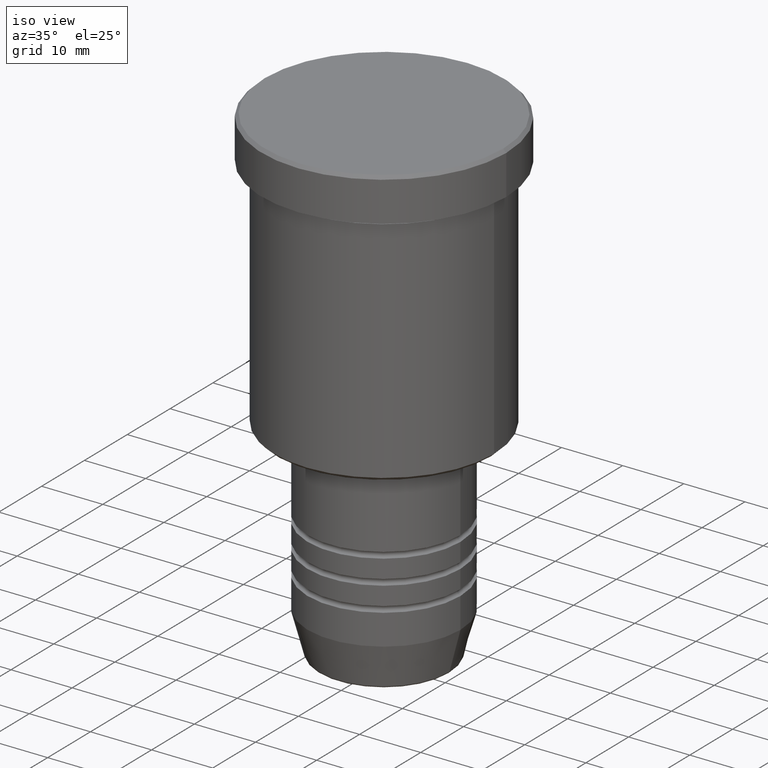
[diagram: clean part render]
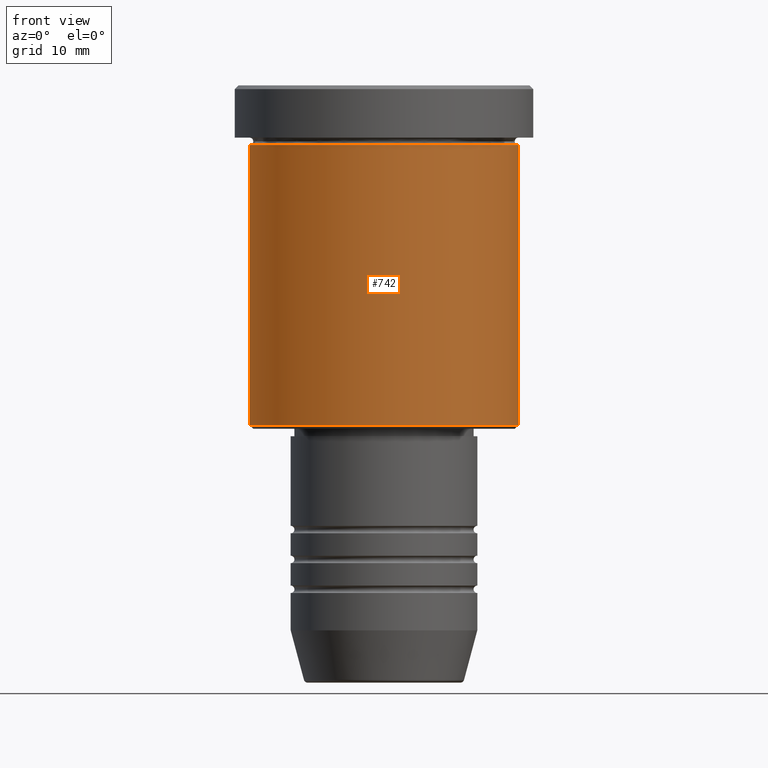
[diagram: tour spotlight — one face highlighted and labeled with its STEP entity id]
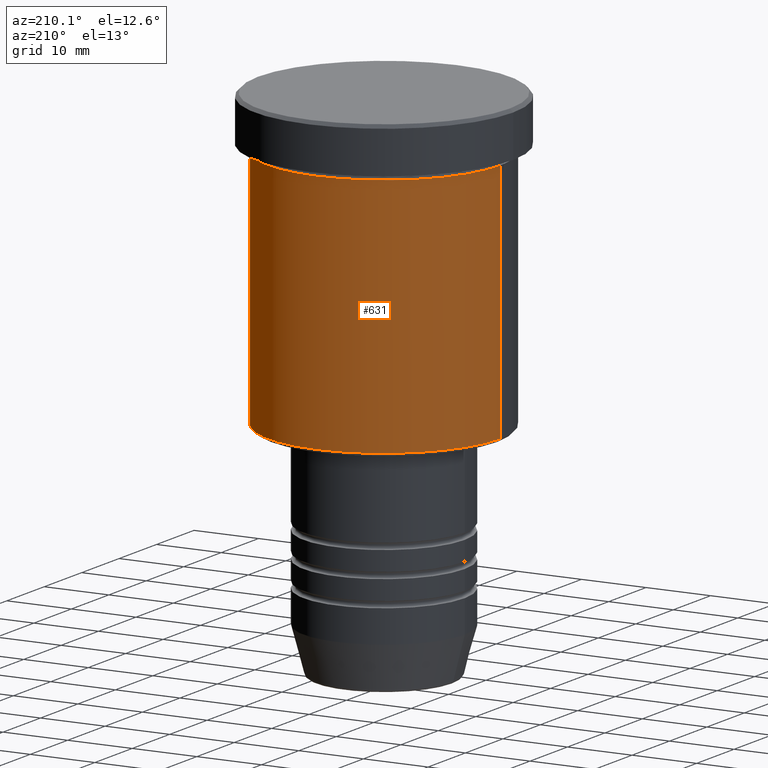
[diagram: tour spotlight — one face highlighted and labeled with its STEP entity id]
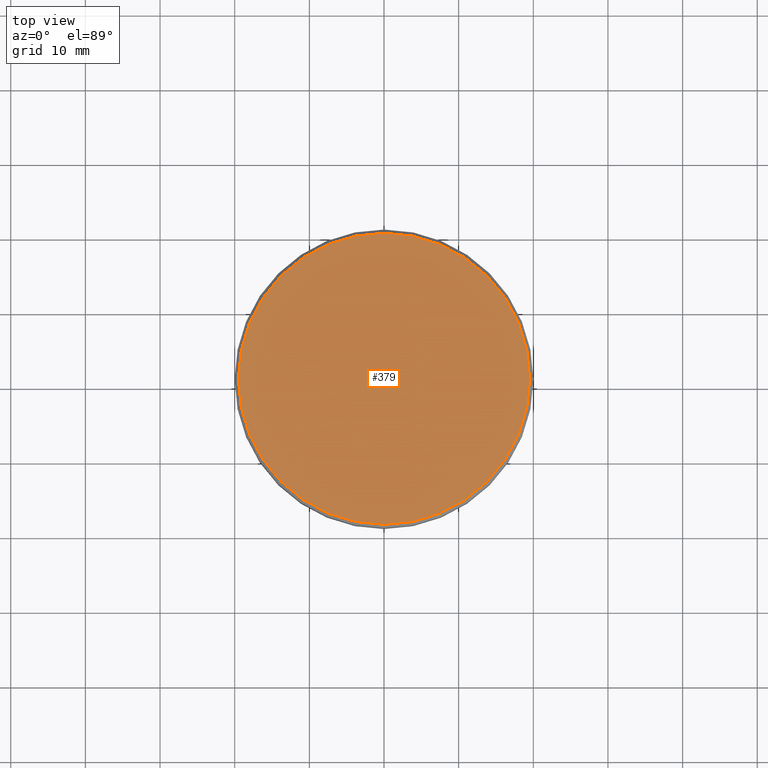
[diagram: tour spotlight — one face highlighted and labeled with its STEP entity id]
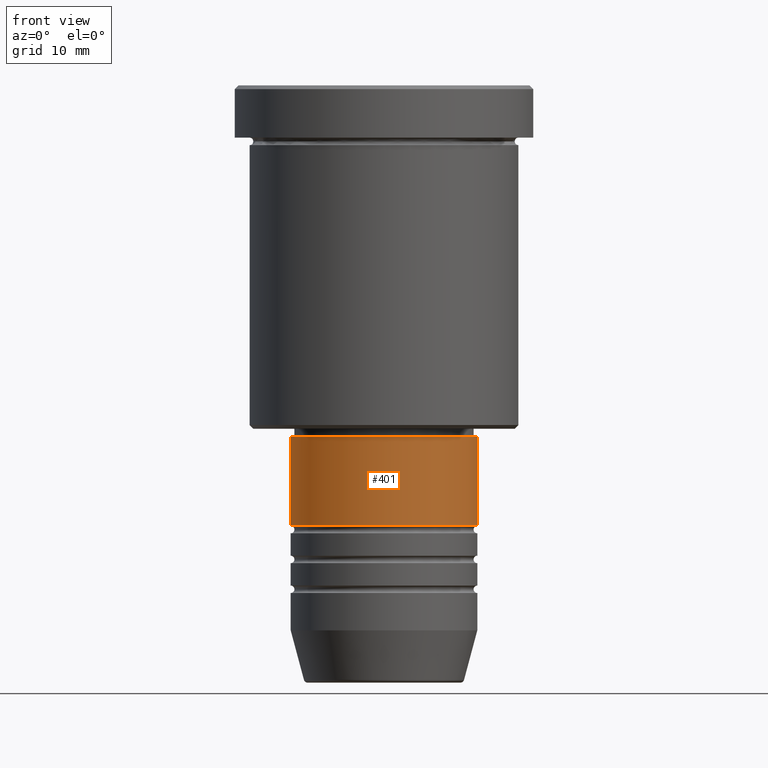
[diagram: tour spotlight — one face highlighted and labeled with its STEP entity id]
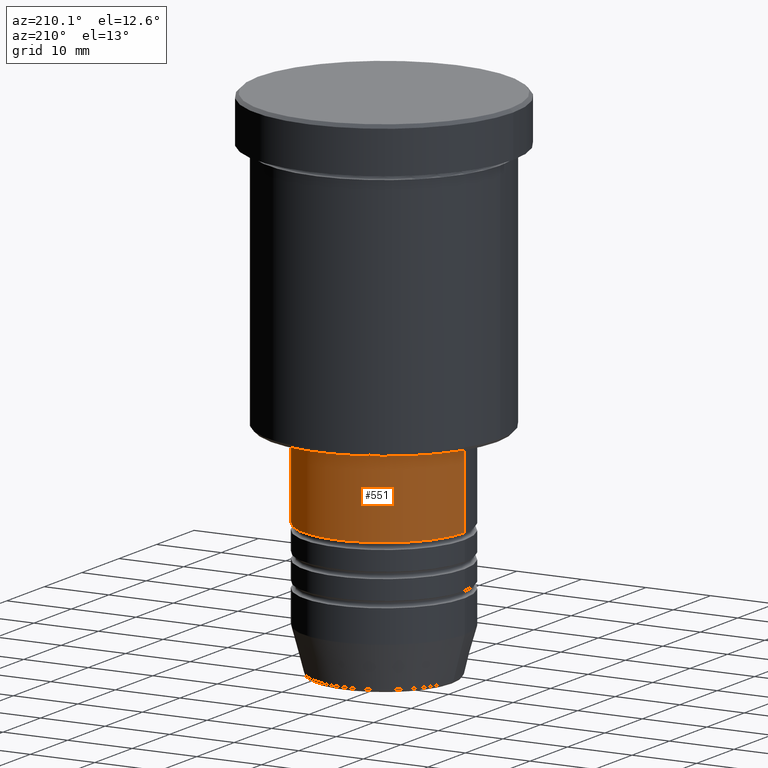
[diagram: tour spotlight — one face highlighted and labeled with its STEP entity id]
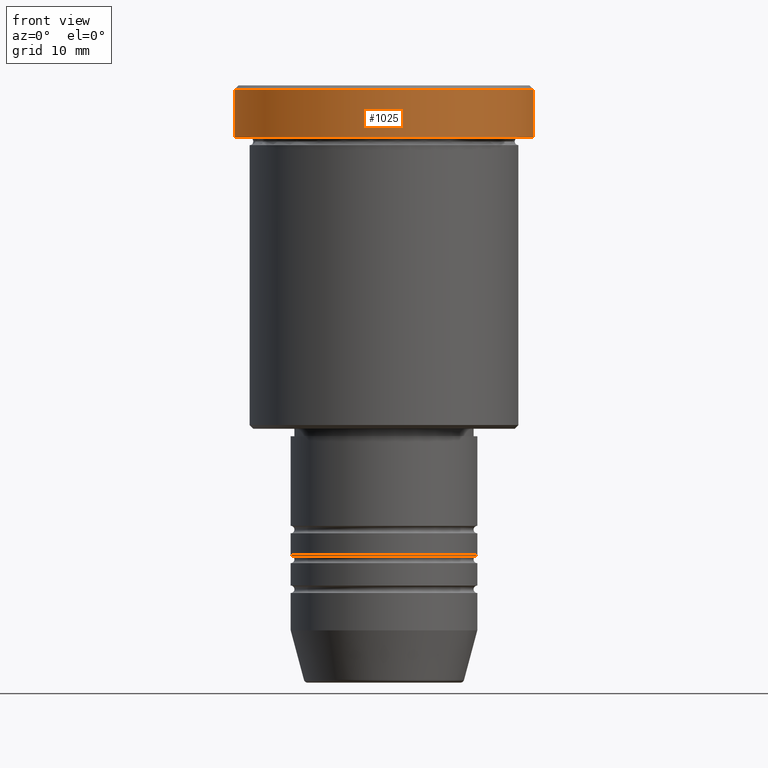
[diagram: tour spotlight — one face highlighted and labeled with its STEP entity id]
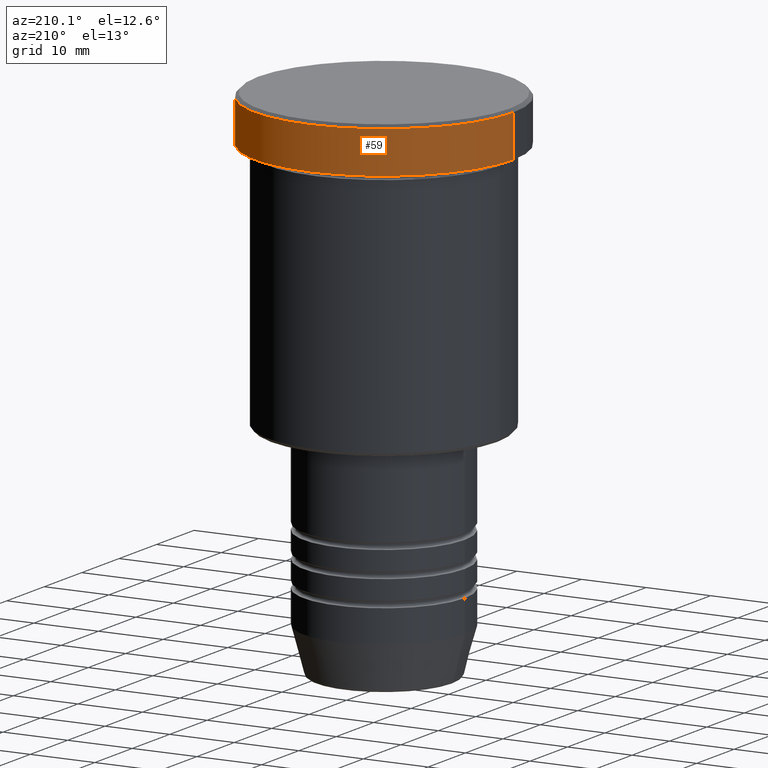
[diagram: tour spotlight — one face highlighted and labeled with its STEP entity id]
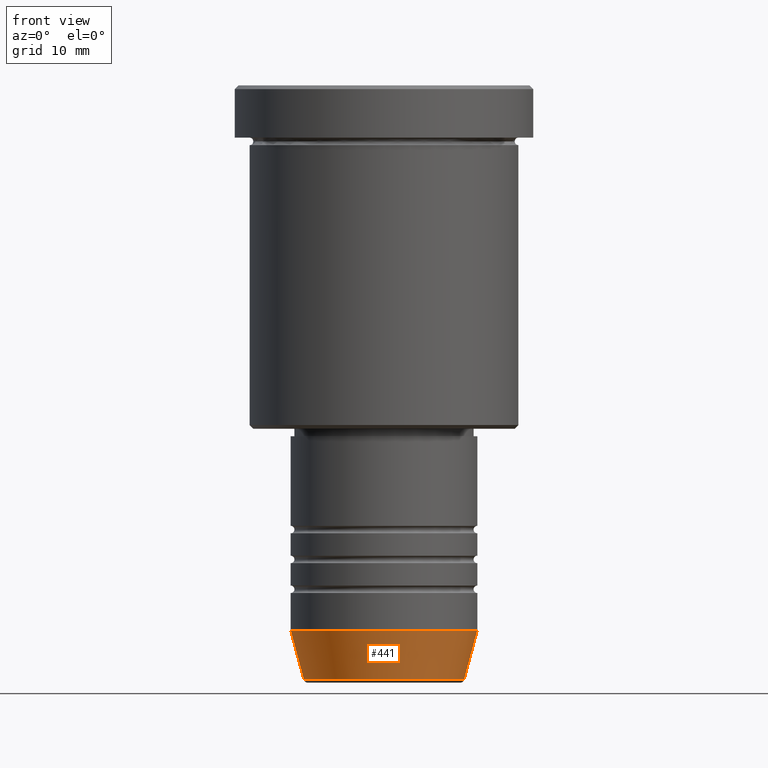
[diagram: tour spotlight — one face highlighted and labeled with its STEP entity id]
A machine part: a face-by-face anatomy tour. The part has 43 B-rep faces; the first image is the clean iso view, then the 8 largest visible faces are spotlighted one at a time (largest first), each with its STEP entity span.

Face 1 — front view, entity #742. In plain terms, the highlighted cylindrical surface (partial cylindrical patch) has radius 18 mm, axis along (-0, -0, 1).
Definition (entity closure, byte-faithful):
#19 = DIRECTION ( 'NONE',  ( -0.000000000000000000, -0.000000000000000000, 1.000000000000000000 ) ) ;
#40 = VERTEX_POINT ( 'NONE', #566 ) ;
#43 = VECTOR ( 'NONE', #19, 1000.000000000000000 ) ;
#87 = CARTESIAN_POINT ( 'NONE',  ( 18.00000000000000000, 0.000000000000000000, 0.000000000000000000 ) ) ;
#125 = ORIENTED_EDGE ( 'NONE', *, *, #521, .T. ) ;
#201 = AXIS2_PLACEMENT_3D ( 'NONE', #649, #1140, #1142 ) ;
#241 = EDGE_CURVE ( 'NONE', #801, #40, #531, .T. ) ;
#324 = DIRECTION ( 'NONE',  ( -0.000000000000000000, -0.000000000000000000, 1.000000000000000000 ) ) ;
#331 = AXIS2_PLACEMENT_3D ( 'NONE', #1138, #324, #969 ) ;
#377 = CARTESIAN_POINT ( 'NONE',  ( 0.000000000000000000, 0.000000000000000000, -7.999999999999996447 ) ) ;
#383 = DIRECTION ( 'NONE',  ( -0.000000000000000000, -0.000000000000000000, 1.000000000000000000 ) ) ;
#395 = CARTESIAN_POINT ( 'NONE',  ( -18.00000000000000000, 2.204364238465235428E-15, 0.000000000000000000 ) ) ;
#403 = ORIENTED_EDGE ( 'NONE', *, *, #1121, .F. ) ;
#415 = CYLINDRICAL_SURFACE ( 'NONE', #331, 18.00000000000000000 ) ;
#521 = EDGE_CURVE ( 'NONE', #40, #860, #1181, .T. ) ;
#524 = CARTESIAN_POINT ( 'NONE',  ( -18.00000000000000000, 2.204364238465235428E-15, -45.50000000000000000 ) ) ;
#531 = CIRCLE ( 'NONE', #201, 18.00000000000000000 ) ;
#552 = EDGE_LOOP ( 'NONE', ( #403, #1173, #125, #1176 ) ) ;
#566 = CARTESIAN_POINT ( 'NONE',  ( 18.00000000000000000, 0.000000000000000000, -45.50000000000000000 ) ) ;
#604 = CARTESIAN_POINT ( 'NONE',  ( 18.00000000000000000, 0.000000000000000000, -7.999999999999996447 ) ) ;
#649 = CARTESIAN_POINT ( 'NONE',  ( 0.000000000000000000, 0.000000000000000000, -45.50000000000000000 ) ) ;
#689 = AXIS2_PLACEMENT_3D ( 'NONE', #377, #810, #928 ) ;
#742 = ADVANCED_FACE ( 'NONE', ( #865 ), #415, .T. ) ;
#796 = VERTEX_POINT ( 'NONE', #877 ) ;
#801 = VERTEX_POINT ( 'NONE', #524 ) ;
#810 = DIRECTION ( 'NONE',  ( -0.000000000000000000, -0.000000000000000000, 1.000000000000000000 ) ) ;
#860 = VERTEX_POINT ( 'NONE', #604 ) ;
#865 = FACE_OUTER_BOUND ( 'NONE', #552, .T. ) ;
#877 = CARTESIAN_POINT ( 'NONE',  ( -18.00000000000000000, 2.204364238465235428E-15, -7.999999999999996447 ) ) ;
#907 = CIRCLE ( 'NONE', #689, 18.00000000000000000 ) ;
#928 = DIRECTION ( 'NONE',  ( 1.000000000000000000, 0.000000000000000000, 0.000000000000000000 ) ) ;
#969 = DIRECTION ( 'NONE',  ( 1.000000000000000000, 0.000000000000000000, 0.000000000000000000 ) ) ;
#995 = EDGE_CURVE ( 'NONE', #796, #860, #907, .T. ) ;
#1043 = LINE ( 'NONE', #395, #43 ) ;
#1121 = EDGE_CURVE ( 'NONE', #801, #796, #1043, .T. ) ;
#1138 = CARTESIAN_POINT ( 'NONE',  ( 0.000000000000000000, 0.000000000000000000, 0.000000000000000000 ) ) ;
#1140 = DIRECTION ( 'NONE',  ( -0.000000000000000000, -0.000000000000000000, 1.000000000000000000 ) ) ;
#1142 = DIRECTION ( 'NONE',  ( -1.000000000000000000, 0.000000000000000000, 0.000000000000000000 ) ) ;
#1173 = ORIENTED_EDGE ( 'NONE', *, *, #241, .T. ) ;
#1176 = ORIENTED_EDGE ( 'NONE', *, *, #995, .F. ) ;
#1181 = LINE ( 'NONE', #87, #1182 ) ;
#1182 = VECTOR ( 'NONE', #383, 1000.000000000000000 ) ;

Face 2 — auxiliary view, entity #631. In plain terms, the highlighted cylindrical surface (partial cylindrical patch) has radius 18 mm, axis along (-0, -0, 1).
Definition (entity closure, byte-faithful):
#19 = DIRECTION ( 'NONE',  ( -0.000000000000000000, -0.000000000000000000, 1.000000000000000000 ) ) ;
#40 = VERTEX_POINT ( 'NONE', #566 ) ;
#43 = VECTOR ( 'NONE', #19, 1000.000000000000000 ) ;
#87 = CARTESIAN_POINT ( 'NONE',  ( 18.00000000000000000, 0.000000000000000000, 0.000000000000000000 ) ) ;
#157 = DIRECTION ( 'NONE',  ( -1.000000000000000000, 0.000000000000000000, 0.000000000000000000 ) ) ;
#162 = ORIENTED_EDGE ( 'NONE', *, *, #776, .T. ) ;
#332 = DIRECTION ( 'NONE',  ( -0.000000000000000000, -0.000000000000000000, 1.000000000000000000 ) ) ;
#354 = CIRCLE ( 'NONE', #809, 18.00000000000000000 ) ;
#362 = DIRECTION ( 'NONE',  ( -0.000000000000000000, -0.000000000000000000, 1.000000000000000000 ) ) ;
#373 = CIRCLE ( 'NONE', #984, 18.00000000000000000 ) ;
#383 = DIRECTION ( 'NONE',  ( -0.000000000000000000, -0.000000000000000000, 1.000000000000000000 ) ) ;
#395 = CARTESIAN_POINT ( 'NONE',  ( -18.00000000000000000, 2.204364238465235428E-15, 0.000000000000000000 ) ) ;
#443 = DIRECTION ( 'NONE',  ( 1.000000000000000000, 0.000000000000000000, 0.000000000000000000 ) ) ;
#478 = DIRECTION ( 'NONE',  ( 1.000000000000000000, 0.000000000000000000, 0.000000000000000000 ) ) ;
#521 = EDGE_CURVE ( 'NONE', #40, #860, #1181, .T. ) ;
#524 = CARTESIAN_POINT ( 'NONE',  ( -18.00000000000000000, 2.204364238465235428E-15, -45.50000000000000000 ) ) ;
#566 = CARTESIAN_POINT ( 'NONE',  ( 18.00000000000000000, 0.000000000000000000, -45.50000000000000000 ) ) ;
#604 = CARTESIAN_POINT ( 'NONE',  ( 18.00000000000000000, 0.000000000000000000, -7.999999999999996447 ) ) ;
#631 = ADVANCED_FACE ( 'NONE', ( #757 ), #937, .T. ) ;
#633 = CARTESIAN_POINT ( 'NONE',  ( 0.000000000000000000, 0.000000000000000000, -7.999999999999996447 ) ) ;
#648 = ORIENTED_EDGE ( 'NONE', *, *, #1121, .T. ) ;
#757 = FACE_OUTER_BOUND ( 'NONE', #946, .T. ) ;
#762 = DIRECTION ( 'NONE',  ( -0.000000000000000000, -0.000000000000000000, 1.000000000000000000 ) ) ;
#776 = EDGE_CURVE ( 'NONE', #40, #801, #373, .T. ) ;
#796 = VERTEX_POINT ( 'NONE', #877 ) ;
#801 = VERTEX_POINT ( 'NONE', #524 ) ;
#809 = AXIS2_PLACEMENT_3D ( 'NONE', #633, #362, #443 ) ;
#836 = ORIENTED_EDGE ( 'NONE', *, *, #521, .F. ) ;
#860 = VERTEX_POINT ( 'NONE', #604 ) ;
#877 = CARTESIAN_POINT ( 'NONE',  ( -18.00000000000000000, 2.204364238465235428E-15, -7.999999999999996447 ) ) ;
#914 = EDGE_CURVE ( 'NONE', #860, #796, #354, .T. ) ;
#937 = CYLINDRICAL_SURFACE ( 'NONE', #1131, 18.00000000000000000 ) ;
#946 = EDGE_LOOP ( 'NONE', ( #162, #648, #1137, #836 ) ) ;
#984 = AXIS2_PLACEMENT_3D ( 'NONE', #1074, #332, #157 ) ;
#1043 = LINE ( 'NONE', #395, #43 ) ;
#1074 = CARTESIAN_POINT ( 'NONE',  ( 0.000000000000000000, 0.000000000000000000, -45.50000000000000000 ) ) ;
#1121 = EDGE_CURVE ( 'NONE', #801, #796, #1043, .T. ) ;
#1122 = CARTESIAN_POINT ( 'NONE',  ( 0.000000000000000000, 0.000000000000000000, 0.000000000000000000 ) ) ;
#1131 = AXIS2_PLACEMENT_3D ( 'NONE', #1122, #762, #478 ) ;
#1137 = ORIENTED_EDGE ( 'NONE', *, *, #914, .F. ) ;
#1181 = LINE ( 'NONE', #87, #1182 ) ;
#1182 = VECTOR ( 'NONE', #383, 1000.000000000000000 ) ;

Face 3 — top view, entity #379. In plain terms, the highlighted planar face has unit normal (0, -0, 1).
Definition (entity closure, byte-faithful):
#99 = EDGE_LOOP ( 'NONE', ( #625, #889 ) ) ;
#187 = CARTESIAN_POINT ( 'NONE',  ( 19.50000000000000355, 2.418677428316022726E-15, 0.000000000000000000 ) ) ;
#207 = CARTESIAN_POINT ( 'NONE',  ( 0.000000000000000000, 0.000000000000000000, 0.000000000000000000 ) ) ;
#259 = CARTESIAN_POINT ( 'NONE',  ( 0.000000000000000000, 0.000000000000000000, 0.000000000000000000 ) ) ;
#317 = CIRCLE ( 'NONE', #909, 19.50000000000000355 ) ;
#343 = PLANE ( 'NONE',  #966 ) ;
#353 = CIRCLE ( 'NONE', #927, 19.50000000000000355 ) ;
#378 = DIRECTION ( 'NONE',  ( -0.000000000000000000, -0.000000000000000000, 1.000000000000000000 ) ) ;
#379 = ADVANCED_FACE ( 'NONE', ( #624 ), #343, .T. ) ;
#475 = VERTEX_POINT ( 'NONE', #187 ) ;
#501 = EDGE_CURVE ( 'NONE', #475, #778, #353, .T. ) ;
#519 = CARTESIAN_POINT ( 'NONE',  ( -19.50000000000000355, 0.000000000000000000, 0.000000000000000000 ) ) ;
#624 = FACE_OUTER_BOUND ( 'NONE', #99, .T. ) ;
#625 = ORIENTED_EDGE ( 'NONE', *, *, #1096, .T. ) ;
#778 = VERTEX_POINT ( 'NONE', #519 ) ;
#863 = CARTESIAN_POINT ( 'NONE',  ( 0.000000000000000000, 0.000000000000000000, 0.000000000000000000 ) ) ;
#883 = DIRECTION ( 'NONE',  ( 0.000000000000000000, -0.000000000000000000, 1.000000000000000000 ) ) ;
#889 = ORIENTED_EDGE ( 'NONE', *, *, #501, .T. ) ;
#909 = AXIS2_PLACEMENT_3D ( 'NONE', #863, #1120, #1130 ) ;
#927 = AXIS2_PLACEMENT_3D ( 'NONE', #207, #378, #994 ) ;
#966 = AXIS2_PLACEMENT_3D ( 'NONE', #259, #883, #976 ) ;
#976 = DIRECTION ( 'NONE',  ( 1.000000000000000000, 0.000000000000000000, 0.000000000000000000 ) ) ;
#994 = DIRECTION ( 'NONE',  ( 1.000000000000000000, 0.000000000000000000, 0.000000000000000000 ) ) ;
#1096 = EDGE_CURVE ( 'NONE', #778, #475, #317, .T. ) ;
#1120 = DIRECTION ( 'NONE',  ( -0.000000000000000000, -0.000000000000000000, 1.000000000000000000 ) ) ;
#1130 = DIRECTION ( 'NONE',  ( 1.000000000000000000, 0.000000000000000000, 0.000000000000000000 ) ) ;

Face 4 — front view, entity #401. In plain terms, the highlighted cylindrical surface (partial cylindrical patch) has radius 12.5 mm, axis along (-0, -0, 1).
Definition (entity closure, byte-faithful):
#25 = ORIENTED_EDGE ( 'NONE', *, *, #1170, .T. ) ;
#35 = VERTEX_POINT ( 'NONE', #141 ) ;
#48 = EDGE_LOOP ( 'NONE', ( #516, #25, #295, #359 ) ) ;
#79 = DIRECTION ( 'NONE',  ( 1.000000000000000000, 0.000000000000000000, 0.000000000000000000 ) ) ;
#101 = VECTOR ( 'NONE', #447, 1000.000000000000000 ) ;
#141 = CARTESIAN_POINT ( 'NONE',  ( -12.50000000000000000, 1.530808498934191521E-15, -47.00000000000000000 ) ) ;
#205 = VERTEX_POINT ( 'NONE', #589 ) ;
#252 = DIRECTION ( 'NONE',  ( 1.000000000000000000, 0.000000000000000000, 0.000000000000000000 ) ) ;
#256 = DIRECTION ( 'NONE',  ( -0.000000000000000000, -0.000000000000000000, 1.000000000000000000 ) ) ;
#295 = ORIENTED_EDGE ( 'NONE', *, *, #363, .T. ) ;
#348 = LINE ( 'NONE', #705, #635 ) ;
#358 = EDGE_CURVE ( 'NONE', #35, #205, #468, .T. ) ;
#359 = ORIENTED_EDGE ( 'NONE', *, *, #358, .F. ) ;
#363 = EDGE_CURVE ( 'NONE', #732, #205, #620, .T. ) ;
#400 = DIRECTION ( 'NONE',  ( -0.000000000000000000, -0.000000000000000000, 1.000000000000000000 ) ) ;
#401 = ADVANCED_FACE ( 'NONE', ( #1069 ), #794, .T. ) ;
#447 = DIRECTION ( 'NONE',  ( -0.000000000000000000, -0.000000000000000000, 1.000000000000000000 ) ) ;
#468 = CIRCLE ( 'NONE', #546, 12.50000000000000000 ) ;
#483 = VERTEX_POINT ( 'NONE', #651 ) ;
#494 = CARTESIAN_POINT ( 'NONE',  ( 0.000000000000000000, 0.000000000000000000, -59.00000000000000711 ) ) ;
#516 = ORIENTED_EDGE ( 'NONE', *, *, #896, .F. ) ;
#525 = CARTESIAN_POINT ( 'NONE',  ( 0.000000000000000000, 0.000000000000000000, 0.000000000000000000 ) ) ;
#538 = DIRECTION ( 'NONE',  ( -0.000000000000000000, -0.000000000000000000, 1.000000000000000000 ) ) ;
#546 = AXIS2_PLACEMENT_3D ( 'NONE', #688, #538, #79 ) ;
#589 = CARTESIAN_POINT ( 'NONE',  ( 12.50000000000000000, 0.000000000000000000, -47.00000000000000000 ) ) ;
#620 = LINE ( 'NONE', #902, #101 ) ;
#635 = VECTOR ( 'NONE', #256, 1000.000000000000000 ) ;
#651 = CARTESIAN_POINT ( 'NONE',  ( -12.50000000000000000, 1.530808498934191521E-15, -59.00000000000000711 ) ) ;
#688 = CARTESIAN_POINT ( 'NONE',  ( 0.000000000000000000, 0.000000000000000000, -47.00000000000000000 ) ) ;
#705 = CARTESIAN_POINT ( 'NONE',  ( -12.50000000000000000, 1.530808498934191521E-15, 0.000000000000000000 ) ) ;
#732 = VERTEX_POINT ( 'NONE', #1045 ) ;
#760 = DIRECTION ( 'NONE',  ( 1.000000000000000000, 0.000000000000000000, 0.000000000000000000 ) ) ;
#794 = CYLINDRICAL_SURFACE ( 'NONE', #930, 12.50000000000000000 ) ;
#896 = EDGE_CURVE ( 'NONE', #483, #35, #348, .T. ) ;
#902 = CARTESIAN_POINT ( 'NONE',  ( 12.50000000000000000, 0.000000000000000000, 0.000000000000000000 ) ) ;
#930 = AXIS2_PLACEMENT_3D ( 'NONE', #525, #986, #252 ) ;
#945 = AXIS2_PLACEMENT_3D ( 'NONE', #494, #400, #760 ) ;
#986 = DIRECTION ( 'NONE',  ( -0.000000000000000000, -0.000000000000000000, 1.000000000000000000 ) ) ;
#1045 = CARTESIAN_POINT ( 'NONE',  ( 12.50000000000000000, 0.000000000000000000, -59.00000000000000711 ) ) ;
#1069 = FACE_OUTER_BOUND ( 'NONE', #48, .T. ) ;
#1113 = CIRCLE ( 'NONE', #945, 12.50000000000000000 ) ;
#1170 = EDGE_CURVE ( 'NONE', #483, #732, #1113, .T. ) ;

Face 5 — auxiliary view, entity #551. In plain terms, the highlighted cylindrical surface (partial cylindrical patch) has radius 12.5 mm, axis along (-0, -0, 1).
Definition (entity closure, byte-faithful):
#13 = ORIENTED_EDGE ( 'NONE', *, *, #188, .T. ) ;
#35 = VERTEX_POINT ( 'NONE', #141 ) ;
#89 = EDGE_CURVE ( 'NONE', #205, #35, #492, .T. ) ;
#101 = VECTOR ( 'NONE', #447, 1000.000000000000000 ) ;
#109 = DIRECTION ( 'NONE',  ( 1.000000000000000000, 0.000000000000000000, 0.000000000000000000 ) ) ;
#130 = CARTESIAN_POINT ( 'NONE',  ( 0.000000000000000000, 0.000000000000000000, -47.00000000000000000 ) ) ;
#141 = CARTESIAN_POINT ( 'NONE',  ( -12.50000000000000000, 1.530808498934191521E-15, -47.00000000000000000 ) ) ;
#154 = DIRECTION ( 'NONE',  ( 1.000000000000000000, 0.000000000000000000, 0.000000000000000000 ) ) ;
#184 = AXIS2_PLACEMENT_3D ( 'NONE', #599, #771, #154 ) ;
#188 = EDGE_CURVE ( 'NONE', #732, #483, #357, .T. ) ;
#205 = VERTEX_POINT ( 'NONE', #589 ) ;
#256 = DIRECTION ( 'NONE',  ( -0.000000000000000000, -0.000000000000000000, 1.000000000000000000 ) ) ;
#348 = LINE ( 'NONE', #705, #635 ) ;
#357 = CIRCLE ( 'NONE', #184, 12.50000000000000000 ) ;
#361 = DIRECTION ( 'NONE',  ( -0.000000000000000000, -0.000000000000000000, 1.000000000000000000 ) ) ;
#363 = EDGE_CURVE ( 'NONE', #732, #205, #620, .T. ) ;
#409 = EDGE_LOOP ( 'NONE', ( #13, #707, #664, #1041 ) ) ;
#447 = DIRECTION ( 'NONE',  ( -0.000000000000000000, -0.000000000000000000, 1.000000000000000000 ) ) ;
#483 = VERTEX_POINT ( 'NONE', #651 ) ;
#492 = CIRCLE ( 'NONE', #791, 12.50000000000000000 ) ;
#518 = DIRECTION ( 'NONE',  ( -0.000000000000000000, -0.000000000000000000, 1.000000000000000000 ) ) ;
#551 = ADVANCED_FACE ( 'NONE', ( #554 ), #932, .T. ) ;
#554 = FACE_OUTER_BOUND ( 'NONE', #409, .T. ) ;
#589 = CARTESIAN_POINT ( 'NONE',  ( 12.50000000000000000, 0.000000000000000000, -47.00000000000000000 ) ) ;
#599 = CARTESIAN_POINT ( 'NONE',  ( 0.000000000000000000, 0.000000000000000000, -59.00000000000000711 ) ) ;
#620 = LINE ( 'NONE', #902, #101 ) ;
#635 = VECTOR ( 'NONE', #256, 1000.000000000000000 ) ;
#651 = CARTESIAN_POINT ( 'NONE',  ( -12.50000000000000000, 1.530808498934191521E-15, -59.00000000000000711 ) ) ;
#664 = ORIENTED_EDGE ( 'NONE', *, *, #89, .F. ) ;
#692 = DIRECTION ( 'NONE',  ( 1.000000000000000000, 0.000000000000000000, 0.000000000000000000 ) ) ;
#705 = CARTESIAN_POINT ( 'NONE',  ( -12.50000000000000000, 1.530808498934191521E-15, 0.000000000000000000 ) ) ;
#707 = ORIENTED_EDGE ( 'NONE', *, *, #896, .T. ) ;
#732 = VERTEX_POINT ( 'NONE', #1045 ) ;
#771 = DIRECTION ( 'NONE',  ( -0.000000000000000000, -0.000000000000000000, 1.000000000000000000 ) ) ;
#791 = AXIS2_PLACEMENT_3D ( 'NONE', #130, #518, #692 ) ;
#896 = EDGE_CURVE ( 'NONE', #483, #35, #348, .T. ) ;
#902 = CARTESIAN_POINT ( 'NONE',  ( 12.50000000000000000, 0.000000000000000000, 0.000000000000000000 ) ) ;
#932 = CYLINDRICAL_SURFACE ( 'NONE', #1013, 12.50000000000000000 ) ;
#1013 = AXIS2_PLACEMENT_3D ( 'NONE', #1177, #361, #109 ) ;
#1041 = ORIENTED_EDGE ( 'NONE', *, *, #363, .F. ) ;
#1045 = CARTESIAN_POINT ( 'NONE',  ( 12.50000000000000000, 0.000000000000000000, -59.00000000000000711 ) ) ;
#1177 = CARTESIAN_POINT ( 'NONE',  ( 0.000000000000000000, 0.000000000000000000, 0.000000000000000000 ) ) ;

Face 6 — front view, entity #1025. In plain terms, the highlighted cylindrical surface (partial cylindrical patch) has radius 20 mm, axis along (-0, -0, 1).
Definition (entity closure, byte-faithful):
#24 = DIRECTION ( 'NONE',  ( 0.000000000000000000, 0.000000000000000000, -1.000000000000000000 ) ) ;
#29 = CARTESIAN_POINT ( 'NONE',  ( -20.00000000000000000, 2.449293598294706513E-15, -6.999999999999995559 ) ) ;
#70 = EDGE_CURVE ( 'NONE', #730, #471, #750, .T. ) ;
#90 = CARTESIAN_POINT ( 'NONE',  ( -20.00000000000000000, 2.449293598294706513E-15, -0.4999999999999970024 ) ) ;
#146 = CIRCLE ( 'NONE', #371, 20.00000000000000000 ) ;
#177 = VERTEX_POINT ( 'NONE', #29 ) ;
#196 = DIRECTION ( 'NONE',  ( 1.000000000000000000, 0.000000000000000000, 0.000000000000000000 ) ) ;
#216 = LINE ( 'NONE', #227, #891 ) ;
#227 = CARTESIAN_POINT ( 'NONE',  ( 20.00000000000000000, 0.000000000000000000, 0.000000000000000000 ) ) ;
#265 = CARTESIAN_POINT ( 'NONE',  ( 0.000000000000000000, 0.000000000000000000, 0.000000000000000000 ) ) ;
#325 = ORIENTED_EDGE ( 'NONE', *, *, #70, .T. ) ;
#351 = EDGE_LOOP ( 'NONE', ( #913, #1044, #967, #325 ) ) ;
#356 = AXIS2_PLACEMENT_3D ( 'NONE', #265, #628, #1006 ) ;
#360 = CYLINDRICAL_SURFACE ( 'NONE', #356, 20.00000000000000000 ) ;
#371 = AXIS2_PLACEMENT_3D ( 'NONE', #372, #1010, #196 ) ;
#372 = CARTESIAN_POINT ( 'NONE',  ( 0.000000000000000000, 0.000000000000000000, -6.999999999999995559 ) ) ;
#399 = DIRECTION ( 'NONE',  ( 1.000000000000000000, 0.000000000000000000, 0.000000000000000000 ) ) ;
#413 = VECTOR ( 'NONE', #843, 1000.000000000000000 ) ;
#471 = VERTEX_POINT ( 'NONE', #90 ) ;
#474 = DIRECTION ( 'NONE',  ( -0.000000000000000000, -0.000000000000000000, 1.000000000000000000 ) ) ;
#485 = CARTESIAN_POINT ( 'NONE',  ( 0.000000000000000000, 0.000000000000000000, -0.4999999999999970024 ) ) ;
#495 = VERTEX_POINT ( 'NONE', #645 ) ;
#498 = LINE ( 'NONE', #503, #413 ) ;
#503 = CARTESIAN_POINT ( 'NONE',  ( -20.00000000000000000, 2.449293598294706513E-15, 0.000000000000000000 ) ) ;
#539 = EDGE_CURVE ( 'NONE', #177, #495, #146, .T. ) ;
#619 = AXIS2_PLACEMENT_3D ( 'NONE', #485, #24, #399 ) ;
#628 = DIRECTION ( 'NONE',  ( -0.000000000000000000, -0.000000000000000000, 1.000000000000000000 ) ) ;
#645 = CARTESIAN_POINT ( 'NONE',  ( 20.00000000000000000, 0.000000000000000000, -6.999999999999995559 ) ) ;
#730 = VERTEX_POINT ( 'NONE', #950 ) ;
#750 = CIRCLE ( 'NONE', #619, 20.00000000000000000 ) ;
#843 = DIRECTION ( 'NONE',  ( -0.000000000000000000, -0.000000000000000000, 1.000000000000000000 ) ) ;
#891 = VECTOR ( 'NONE', #474, 1000.000000000000000 ) ;
#913 = ORIENTED_EDGE ( 'NONE', *, *, #1062, .F. ) ;
#950 = CARTESIAN_POINT ( 'NONE',  ( 20.00000000000000000, 0.000000000000000000, -0.4999999999999970024 ) ) ;
#967 = ORIENTED_EDGE ( 'NONE', *, *, #1148, .T. ) ;
#1006 = DIRECTION ( 'NONE',  ( 1.000000000000000000, 0.000000000000000000, 0.000000000000000000 ) ) ;
#1010 = DIRECTION ( 'NONE',  ( -0.000000000000000000, -0.000000000000000000, 1.000000000000000000 ) ) ;
#1025 = ADVANCED_FACE ( 'NONE', ( #1092 ), #360, .T. ) ;
#1044 = ORIENTED_EDGE ( 'NONE', *, *, #539, .T. ) ;
#1062 = EDGE_CURVE ( 'NONE', #177, #471, #498, .T. ) ;
#1092 = FACE_OUTER_BOUND ( 'NONE', #351, .T. ) ;
#1148 = EDGE_CURVE ( 'NONE', #495, #730, #216, .T. ) ;

Face 7 — auxiliary view, entity #59. In plain terms, the highlighted cylindrical surface (partial cylindrical patch) has radius 20 mm, axis along (-0, -0, 1).
Definition (entity closure, byte-faithful):
#29 = CARTESIAN_POINT ( 'NONE',  ( -20.00000000000000000, 2.449293598294706513E-15, -6.999999999999995559 ) ) ;
#59 = ADVANCED_FACE ( 'NONE', ( #944 ), #302, .T. ) ;
#90 = CARTESIAN_POINT ( 'NONE',  ( -20.00000000000000000, 2.449293598294706513E-15, -0.4999999999999970024 ) ) ;
#106 = ORIENTED_EDGE ( 'NONE', *, *, #617, .T. ) ;
#117 = DIRECTION ( 'NONE',  ( 1.000000000000000000, 0.000000000000000000, 0.000000000000000000 ) ) ;
#177 = VERTEX_POINT ( 'NONE', #29 ) ;
#200 = AXIS2_PLACEMENT_3D ( 'NONE', #1124, #308, #669 ) ;
#216 = LINE ( 'NONE', #227, #891 ) ;
#227 = CARTESIAN_POINT ( 'NONE',  ( 20.00000000000000000, 0.000000000000000000, 0.000000000000000000 ) ) ;
#302 = CYLINDRICAL_SURFACE ( 'NONE', #675, 20.00000000000000000 ) ;
#308 = DIRECTION ( 'NONE',  ( -0.000000000000000000, -0.000000000000000000, 1.000000000000000000 ) ) ;
#413 = VECTOR ( 'NONE', #843, 1000.000000000000000 ) ;
#471 = VERTEX_POINT ( 'NONE', #90 ) ;
#474 = DIRECTION ( 'NONE',  ( -0.000000000000000000, -0.000000000000000000, 1.000000000000000000 ) ) ;
#491 = CIRCLE ( 'NONE', #200, 20.00000000000000000 ) ;
#495 = VERTEX_POINT ( 'NONE', #645 ) ;
#498 = LINE ( 'NONE', #503, #413 ) ;
#503 = CARTESIAN_POINT ( 'NONE',  ( -20.00000000000000000, 2.449293598294706513E-15, 0.000000000000000000 ) ) ;
#572 = CARTESIAN_POINT ( 'NONE',  ( 0.000000000000000000, 0.000000000000000000, 0.000000000000000000 ) ) ;
#617 = EDGE_CURVE ( 'NONE', #471, #730, #1107, .T. ) ;
#645 = CARTESIAN_POINT ( 'NONE',  ( 20.00000000000000000, 0.000000000000000000, -6.999999999999995559 ) ) ;
#659 = CARTESIAN_POINT ( 'NONE',  ( 0.000000000000000000, 0.000000000000000000, -0.4999999999999970024 ) ) ;
#669 = DIRECTION ( 'NONE',  ( 1.000000000000000000, 0.000000000000000000, 0.000000000000000000 ) ) ;
#675 = AXIS2_PLACEMENT_3D ( 'NONE', #572, #938, #117 ) ;
#683 = DIRECTION ( 'NONE',  ( 1.000000000000000000, 0.000000000000000000, 0.000000000000000000 ) ) ;
#730 = VERTEX_POINT ( 'NONE', #950 ) ;
#777 = ORIENTED_EDGE ( 'NONE', *, *, #1175, .T. ) ;
#843 = DIRECTION ( 'NONE',  ( -0.000000000000000000, -0.000000000000000000, 1.000000000000000000 ) ) ;
#862 = EDGE_LOOP ( 'NONE', ( #777, #1040, #106, #920 ) ) ;
#891 = VECTOR ( 'NONE', #474, 1000.000000000000000 ) ;
#920 = ORIENTED_EDGE ( 'NONE', *, *, #1148, .F. ) ;
#938 = DIRECTION ( 'NONE',  ( -0.000000000000000000, -0.000000000000000000, 1.000000000000000000 ) ) ;
#944 = FACE_OUTER_BOUND ( 'NONE', #862, .T. ) ;
#950 = CARTESIAN_POINT ( 'NONE',  ( 20.00000000000000000, 0.000000000000000000, -0.4999999999999970024 ) ) ;
#959 = DIRECTION ( 'NONE',  ( 0.000000000000000000, 0.000000000000000000, -1.000000000000000000 ) ) ;
#1040 = ORIENTED_EDGE ( 'NONE', *, *, #1062, .T. ) ;
#1062 = EDGE_CURVE ( 'NONE', #177, #471, #498, .T. ) ;
#1107 = CIRCLE ( 'NONE', #1150, 20.00000000000000000 ) ;
#1124 = CARTESIAN_POINT ( 'NONE',  ( 0.000000000000000000, 0.000000000000000000, -6.999999999999995559 ) ) ;
#1148 = EDGE_CURVE ( 'NONE', #495, #730, #216, .T. ) ;
#1150 = AXIS2_PLACEMENT_3D ( 'NONE', #659, #959, #683 ) ;
#1175 = EDGE_CURVE ( 'NONE', #495, #177, #491, .T. ) ;

Face 8 — front view, entity #441. In plain terms, the highlighted conical surface has half-angle 15 deg.
Definition (entity closure, byte-faithful):
#93 = DIRECTION ( 'NONE',  ( -0.2588190451025213501, 3.169619151431772337E-17, 0.9659258262890680902 ) ) ;
#135 = EDGE_CURVE ( 'NONE', #385, #405, #1104, .T. ) ;
#152 = EDGE_CURVE ( 'NONE', #533, #418, #384, .T. ) ;
#158 = CARTESIAN_POINT ( 'NONE',  ( 12.50000000000000000, 0.000000000000000000, -73.00000000000001421 ) ) ;
#263 = DIRECTION ( 'NONE',  ( 1.000000000000000000, 0.000000000000000000, 0.000000000000000000 ) ) ;
#274 = CIRCLE ( 'NONE', #947, 10.72365507213718772 ) ;
#287 = CARTESIAN_POINT ( 'NONE',  ( 12.50000000000000000, 0.000000000000000000, -73.00000000000001421 ) ) ;
#311 = CONICAL_SURFACE ( 'NONE', #745, 12.50000000000000000, 0.2617993877991500740 ) ;
#312 = ORIENTED_EDGE ( 'NONE', *, *, #547, .F. ) ;
#314 = DIRECTION ( 'NONE',  ( 1.000000000000000000, 0.000000000000000000, 0.000000000000000000 ) ) ;
#340 = ORIENTED_EDGE ( 'NONE', *, *, #152, .F. ) ;
#384 = LINE ( 'NONE', #1088, #713 ) ;
#385 = VERTEX_POINT ( 'NONE', #706 ) ;
#404 = DIRECTION ( 'NONE',  ( -0.000000000000000000, -0.000000000000000000, 1.000000000000000000 ) ) ;
#405 = VERTEX_POINT ( 'NONE', #158 ) ;
#418 = VERTEX_POINT ( 'NONE', #1054 ) ;
#440 = CARTESIAN_POINT ( 'NONE',  ( 0.000000000000000000, 0.000000000000000000, -73.00000000000001421 ) ) ;
#441 = ADVANCED_FACE ( 'NONE', ( #900 ), #311, .T. ) ;
#526 = CIRCLE ( 'NONE', #672, 12.50000000000000000 ) ;
#533 = VERTEX_POINT ( 'NONE', #912 ) ;
#547 = EDGE_CURVE ( 'NONE', #418, #405, #526, .T. ) ;
#564 = CARTESIAN_POINT ( 'NONE',  ( 0.000000000000000000, 0.000000000000000000, -79.62940952255127058 ) ) ;
#568 = ORIENTED_EDGE ( 'NONE', *, *, #135, .T. ) ;
#636 = CARTESIAN_POINT ( 'NONE',  ( 0.000000000000000000, 0.000000000000000000, -73.00000000000001421 ) ) ;
#672 = AXIS2_PLACEMENT_3D ( 'NONE', #636, #1095, #812 ) ;
#706 = CARTESIAN_POINT ( 'NONE',  ( 10.72365507213718772, 0.000000000000000000, -79.62940952255127058 ) ) ;
#713 = VECTOR ( 'NONE', #93, 1000.000000000000000 ) ;
#722 = DIRECTION ( 'NONE',  ( 0.2588190451025213501, 0.000000000000000000, 0.9659258262890680902 ) ) ;
#745 = AXIS2_PLACEMENT_3D ( 'NONE', #440, #805, #263 ) ;
#751 = EDGE_LOOP ( 'NONE', ( #340, #1067, #568, #312 ) ) ;
#805 = DIRECTION ( 'NONE',  ( -0.000000000000000000, -0.000000000000000000, 1.000000000000000000 ) ) ;
#812 = DIRECTION ( 'NONE',  ( 1.000000000000000000, 0.000000000000000000, 0.000000000000000000 ) ) ;
#894 = VECTOR ( 'NONE', #722, 1000.000000000000000 ) ;
#900 = FACE_OUTER_BOUND ( 'NONE', #751, .T. ) ;
#912 = CARTESIAN_POINT ( 'NONE',  ( -10.72365507213718772, 1.422038742429750121E-15, -79.62940952255127058 ) ) ;
#947 = AXIS2_PLACEMENT_3D ( 'NONE', #564, #404, #314 ) ;
#1048 = EDGE_CURVE ( 'NONE', #533, #385, #274, .T. ) ;
#1054 = CARTESIAN_POINT ( 'NONE',  ( -12.50000000000000000, 1.530808498934191521E-15, -73.00000000000001421 ) ) ;
#1067 = ORIENTED_EDGE ( 'NONE', *, *, #1048, .T. ) ;
#1088 = CARTESIAN_POINT ( 'NONE',  ( -12.50000000000000000, 1.530808498934191521E-15, -73.00000000000001421 ) ) ;
#1095 = DIRECTION ( 'NONE',  ( -0.000000000000000000, -0.000000000000000000, 1.000000000000000000 ) ) ;
#1104 = LINE ( 'NONE', #287, #894 ) ;